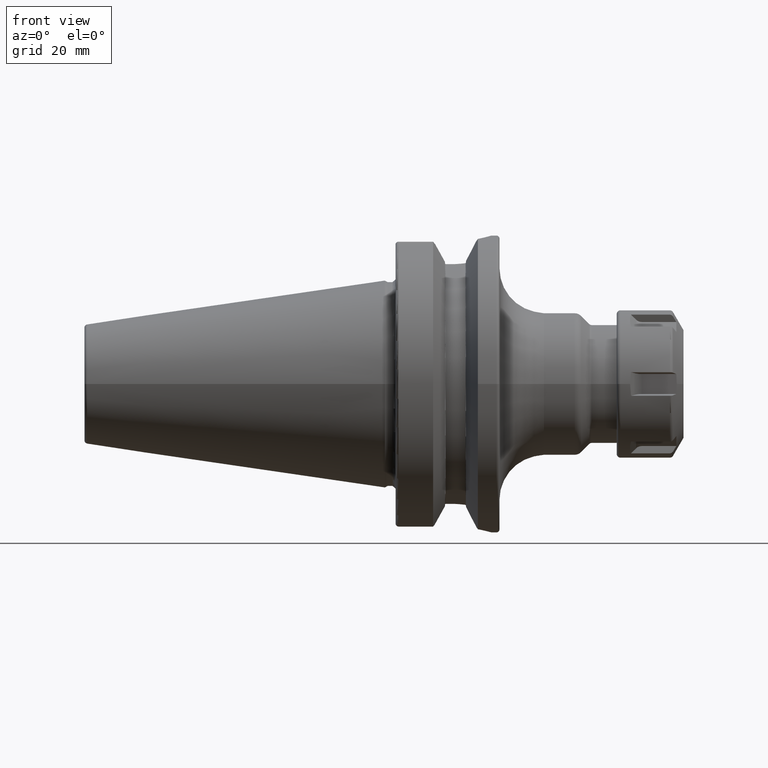
[diagram: clean part render]
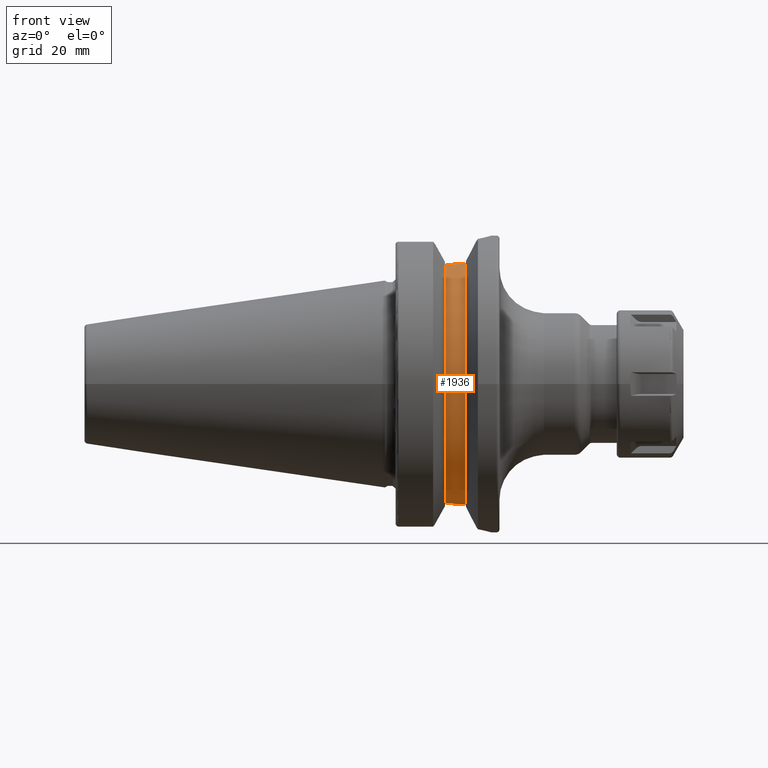
[diagram: same view with one face highlighted and labeled with its STEP entity id]
A machine part, front view. The second image highlights one B-rep face of the part: STEP entity #1936.
In plain terms, the highlighted cylindrical surface (partial cylindrical patch) has radius 42.375 mm, axis along (1, 0, 0).
Its self-contained STEP definition (entity closure, byte-faithful):
#308=DIRECTION('',(1.E0,0.E0,0.E0));
#309=VECTOR('',#308,1.435E0);
#310=CARTESIAN_POINT('',(1.99125E1,-1.29025E1,-4.036293000700E1));
#311=LINE('',#310,#309);
#368=CARTESIAN_POINT('',(2.64875E1,-1.183447955129E1,-4.068888937720E1));
#369=CARTESIAN_POINT('',(2.593767013313E1,-1.207328392824E1,-4.061943244291E1));
#370=CARTESIAN_POINT('',(2.482251458205E1,-1.246756636174E1,-4.050035379603E1));
#371=CARTESIAN_POINT('',(2.309259987910E1,-1.282394305606E1,-4.038817378858E1));
#372=CARTESIAN_POINT('',(2.193211835188E1,-1.29025E1,-4.036293000700E1));
#373=CARTESIAN_POINT('',(2.13475E1,-1.29025E1,-4.036293000700E1));
#375=CARTESIAN_POINT('',(1.99125E1,0.E0,0.E0));
#376=DIRECTION('',(-1.E0,0.E0,0.E0));
#377=DIRECTION('',(0.E0,-3.044837758112E-1,-9.525175222891E-1));
#378=AXIS2_PLACEMENT_3D('',#375,#376,#377);
#380=CARTESIAN_POINT('',(2.13475E1,-1.29025E1,4.036293000700E1));
#381=CARTESIAN_POINT('',(2.193211835188E1,-1.29025E1,4.036293000700E1));
#382=CARTESIAN_POINT('',(2.309259987910E1,-1.282394305606E1,4.038817378858E1));
#383=CARTESIAN_POINT('',(2.482251458205E1,-1.246756636174E1,4.050035379603E1));
#384=CARTESIAN_POINT('',(2.593767013313E1,-1.207328392824E1,4.061943244291E1));
#385=CARTESIAN_POINT('',(2.64875E1,-1.183447955129E1,4.068888937720E1));
#463=CARTESIAN_POINT('',(2.64875E1,0.E0,0.E0));
#464=DIRECTION('',(-1.E0,0.E0,0.E0));
#465=DIRECTION('',(0.E0,-2.792797534229E-1,-9.602097788130E-1));
#466=AXIS2_PLACEMENT_3D('',#463,#464,#465);
#548=DIRECTION('',(1.E0,0.E0,0.E0));
#549=VECTOR('',#548,1.435E0);
#550=CARTESIAN_POINT('',(1.99125E1,-1.29025E1,4.036293000700E1));
#551=LINE('',#550,#549);
#1240=CARTESIAN_POINT('',(1.99125E1,-1.29025E1,-4.036293000700E1));
#1241=CARTESIAN_POINT('',(1.99125E1,-1.29025E1,4.036293000700E1));
#1242=VERTEX_POINT('',#1240);
#1243=VERTEX_POINT('',#1241);
#1252=CARTESIAN_POINT('',(2.64875E1,-1.183447955129E1,-4.068888937720E1));
#1253=CARTESIAN_POINT('',(2.64875E1,-1.183447955129E1,4.068888937720E1));
#1254=VERTEX_POINT('',#1252);
#1255=VERTEX_POINT('',#1253);
#1381=CARTESIAN_POINT('',(2.13475E1,-1.29025E1,4.036293000700E1));
#1382=VERTEX_POINT('',#1381);
#1389=CARTESIAN_POINT('',(2.13475E1,-1.29025E1,-4.036293000700E1));
#1390=VERTEX_POINT('',#1389);
#1919=CARTESIAN_POINT('',(1.491626494021E1,0.E0,0.E0));
#1920=DIRECTION('',(1.E0,0.E0,0.E0));
#1921=DIRECTION('',(0.E0,-1.E0,0.E0));
#1922=AXIS2_PLACEMENT_3D('',#1919,#1920,#1921);
#1923=CYLINDRICAL_SURFACE('',#1922,4.2375E1);
#1925=ORIENTED_EDGE('',*,*,#1924,.T.);
#1926=ORIENTED_EDGE('',*,*,#1858,.F.);
#1927=ORIENTED_EDGE('',*,*,#1892,.T.);
#1929=ORIENTED_EDGE('',*,*,#1928,.T.);
#1931=ORIENTED_EDGE('',*,*,#1930,.T.);
#1933=ORIENTED_EDGE('',*,*,#1932,.F.);
#1934=EDGE_LOOP('',(#1925,#1926,#1927,#1929,#1931,#1933));
#1935=FACE_OUTER_BOUND('',#1934,.F.);
#1936=ADVANCED_FACE('',(#1935),#1923,.T.);
#374=B_SPLINE_CURVE_WITH_KNOTS('',3,(#368,#369,#370,#371,#372,#373),
.UNSPECIFIED.,.F.,.F.,(4,1,1,4),(0.E0,3.333333333333E-1,6.666666666667E-1,1.E0),
.UNSPECIFIED.);
#379=CIRCLE('',#378,4.2375E1);
#386=B_SPLINE_CURVE_WITH_KNOTS('',3,(#380,#381,#382,#383,#384,#385),
.UNSPECIFIED.,.F.,.F.,(4,1,1,4),(0.E0,3.333333333333E-1,6.666666666667E-1,1.E0),
.UNSPECIFIED.);
#467=CIRCLE('',#466,4.2375E1);
#1858=EDGE_CURVE('',#1242,#1390,#311,.T.);
#1892=EDGE_CURVE('',#1242,#1243,#379,.T.);
#1924=EDGE_CURVE('',#1254,#1390,#374,.T.);
#1928=EDGE_CURVE('',#1243,#1382,#551,.T.);
#1930=EDGE_CURVE('',#1382,#1255,#386,.T.);
#1932=EDGE_CURVE('',#1254,#1255,#467,.T.);